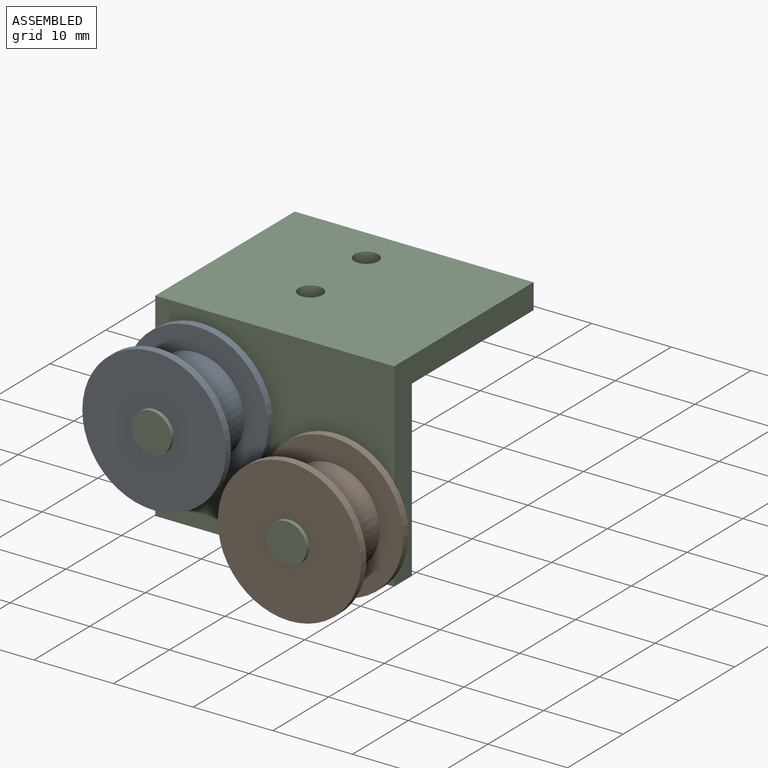
[diagram: assembled view]
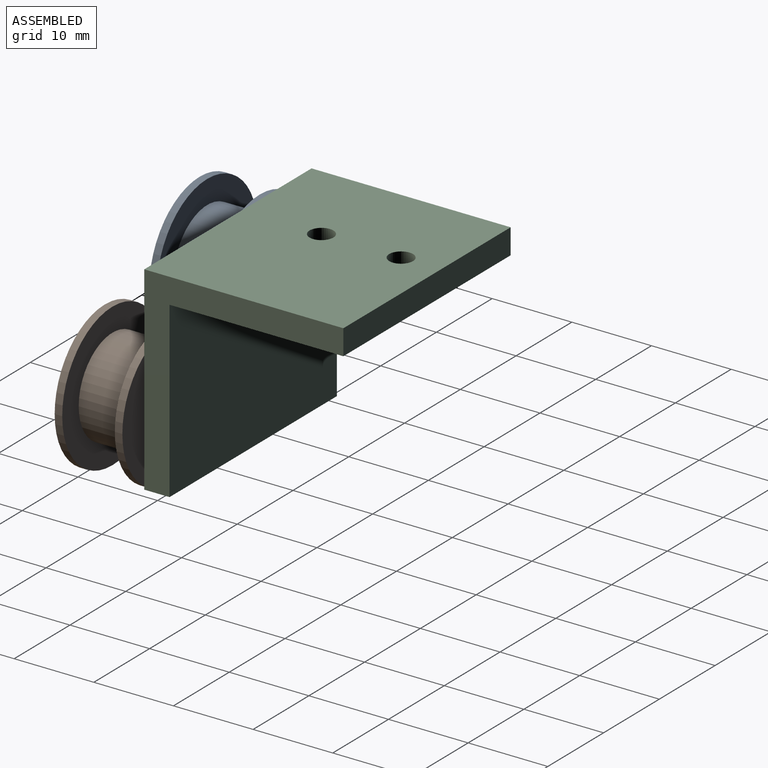
[diagram: assembled view, second angle]
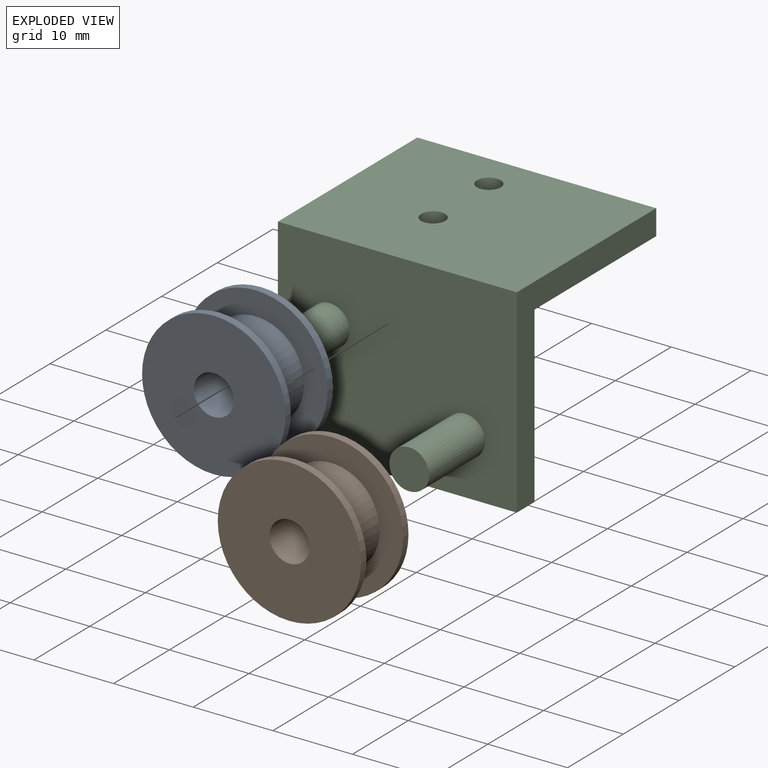
[diagram: exploded view]
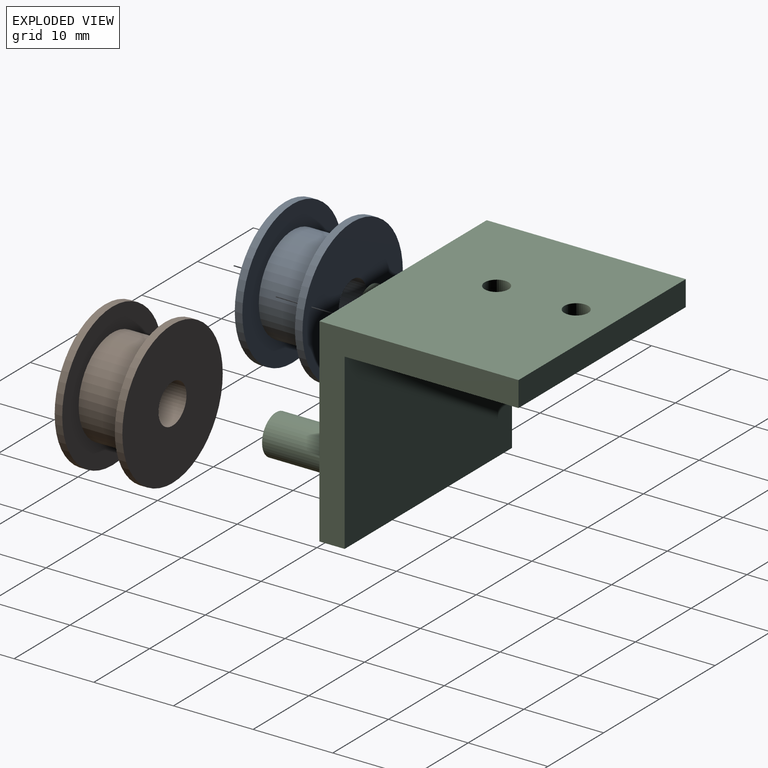
[diagram: exploded view, second angle]
ASSEMBLY  parts=3 mates=4
PART A: 8 faces, bbox 18x18x8.5 mm
  f0: cylinder r=2.5mm len=8.5mm, axis (0,0,-1), area 133.5mm2, adj f1,f7
  f1: plane 18x18mm, normal (0,0,1), area 234.8mm2, adj f0,f2
  f2: cylinder r=9mm len=18mm, axis (0,0,-1), area 53.7mm2, adj f1,f3
  f3: plane 18x18mm, normal (0,0,-1), area 139.5mm2, adj f2,f4
  f4: cylinder r=6.05mm len=12.1mm, axis (0,0,-1), area 250.9mm2, adj f3,f5
  f5: plane 18x18mm, normal (0,0,1), area 139.5mm2, adj f4,f6
  f6: cylinder r=9mm len=18mm, axis (0,0,-1), area 53.7mm2, adj f5,f7
  f7: plane 18x18mm, normal (0,0,-1), area 234.8mm2, adj f0,f6
PART B: same geometry as A
PART C: 14 faces, bbox 30x35x25 mm
  f0: plane 25x25mm, normal (1,0,0), area 148.7mm2, adj f1,f3,f4,f5,f10,f11
  f1: plane 30x25mm, normal (0,0,1), area 735.9mm2, adj f0,f2,f4,f11,f12,f13
  f2: plane 25x25mm, normal (-1,0,0), area 148.7mm2, adj f1,f3,f4,f5,f10,f11
  f3: plane 30x3.18mm, normal (0,0,-1), area 95.2mm2, adj f0,f2,f4,f5
  f4: plane 30x25mm, normal (0,-1,0), area 710.7mm2, adj f0,f1,f2,f3,f6,f8
  f5: plane 30x21.83mm, normal (0,1,0), area 654.8mm2, adj f0,f2,f3,f10
  f6: cylinder r=2.5mm len=10mm, axis (0,1,0), area 157.1mm2, adj f4,f7
  f7: plane 5x5mm, normal (0,-1,0), area 19.6mm2, adj f6
  f8: cylinder r=2.5mm len=10mm, axis (0,1,0), area 157.1mm2, adj f4,f9
  f9: plane 5x5mm, normal (0,-1,0), area 19.6mm2, adj f8
  f10: plane 30x21.83mm, normal (0,0,-1), area 640.6mm2, adj f0,f2,f5,f11,f12,f13
  f11: plane 30x3.18mm, normal (0,1,0), area 95.2mm2, adj f0,f1,f2,f10
  f12: cylinder r=1.5mm len=3.18mm, axis (0,0,1), area 29.9mm2, adj f1,f10
  f13: cylinder r=1.5mm len=3.18mm, axis (0,0,1), area 29.9mm2, adj f1,f10
PLACE A rot(axis=(-1,0,0),90deg) t=(10.12,11.37,2.8)mm
PLACE B rot(axis=(-1,0,0),90deg) t=(27.12,11.37,-5.2)mm
PLACE C t=(18.62,24.04,0.3)mm
MATE planar C.f4 <-> B.f0  axis (0,-1,0) through (18.62,20.87,0.38)mm
MATE cylindrical C.f8 <-> B.f0  axis (0,1,0) through (27.12,15.87,-5.2)mm
MATE planar A.f0 <-> B.f0  axis (0,1,0) through (10.12,19.87,2.8)mm
MATE cylindrical A.f0 <-> C.f6  axis (0,1,0) through (10.12,19.87,2.8)mm
